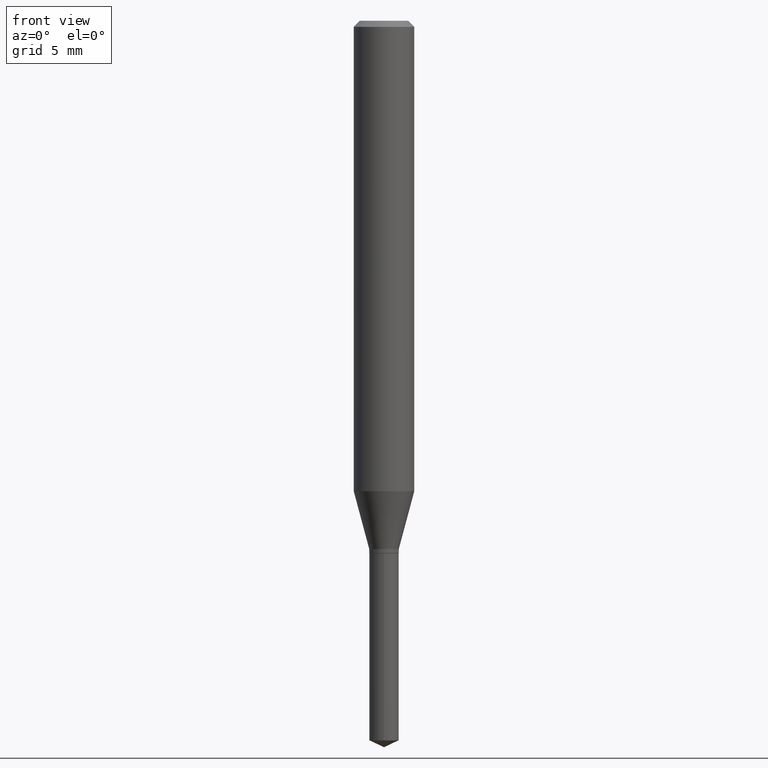
[diagram: clean part render]
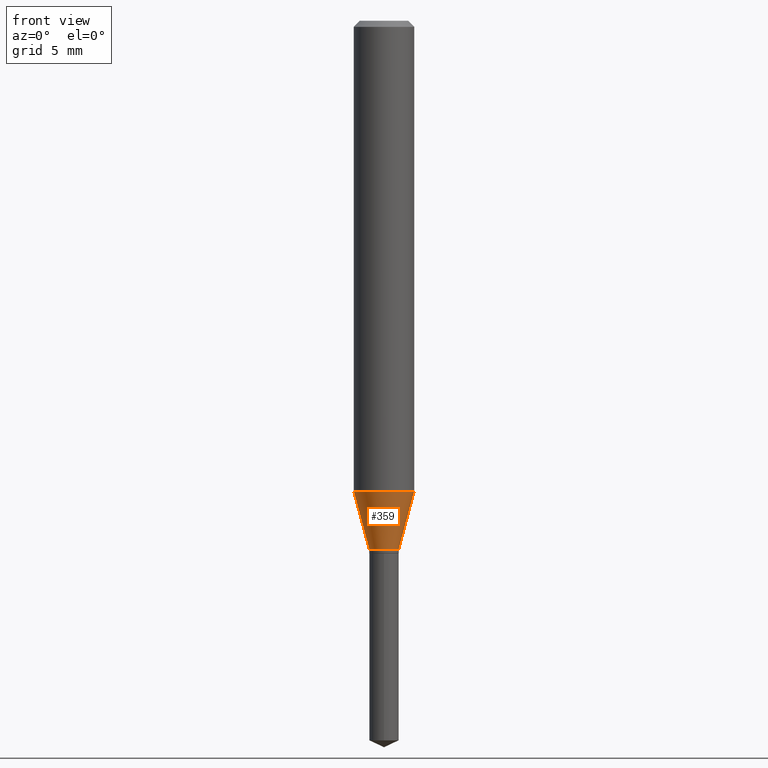
[diagram: same view with one face highlighted and labeled with its STEP entity id]
A machine part, front view. The second image highlights one B-rep face of the part: STEP entity #359.
In plain terms, the highlighted conical surface has half-angle 15 deg.
Its self-contained STEP definition (entity closure, byte-faithful):
#33 = DIRECTION ( 'NONE',  ( 1.000000000000000000, -6.982962677686264344E-15, 0.000000000000000000 ) ) ;
#42 = ORIENTED_EDGE ( 'NONE', *, *, #56, .T. ) ;
#56 = EDGE_CURVE ( 'NONE', #268, #235, #437, .T. ) ;
#75 = VECTOR ( 'NONE', #243, 39.37007874015748854 ) ;
#79 = LINE ( 'NONE', #459, #311 ) ;
#84 = ORIENTED_EDGE ( 'NONE', *, *, #297, .F. ) ;
#87 = DIRECTION ( 'NONE',  ( -2.445468806185136597E-29, 3.491481338843145583E-15, 1.000000000000000000 ) ) ;
#117 = DIRECTION ( 'NONE',  ( -2.445468806185136597E-29, 3.491481338843145583E-15, 1.000000000000000000 ) ) ;
#120 = FACE_OUTER_BOUND ( 'NONE', #299, .T. ) ;
#158 = CARTESIAN_POINT ( 'NONE',  ( 2.667517373786747418E-29, -3.808507844410103647E-15, -1.090799999999999992 ) ) ;
#225 = DIRECTION ( 'NONE',  ( 1.000000000000000000, -6.982962677686269866E-15, 0.000000000000000000 ) ) ;
#235 = VERTEX_POINT ( 'NONE', #255 ) ;
#240 = ORIENTED_EDGE ( 'NONE', *, *, #350, .F. ) ;
#243 = DIRECTION ( 'NONE',  ( 0.2588190451025212391, 1.565188264969622362E-15, 0.9659258262890679791 ) ) ;
#251 = CIRCLE ( 'NONE', #442, 0.06250000000000012490 ) ;
#255 = CARTESIAN_POINT ( 'NONE',  ( 0.06250000000000012490, -3.827970667757776114E-15, -0.9713743741577957058 ) ) ;
#268 = VERTEX_POINT ( 'NONE', #292 ) ;
#269 = DIRECTION ( 'NONE',  ( 1.000000000000000000, -6.982962677686269866E-15, 0.000000000000000000 ) ) ;
#292 = CARTESIAN_POINT ( 'NONE',  ( 0.03049999999999999586, -4.021488206079534971E-15, -1.090799999999999992 ) ) ;
#297 = EDGE_CURVE ( 'NONE', #305, #235, #251, .T. ) ;
#299 = EDGE_LOOP ( 'NONE', ( #240, #302, #42, #84 ) ) ;
#302 = ORIENTED_EDGE ( 'NONE', *, *, #393, .T. ) ;
#305 = VERTEX_POINT ( 'NONE', #370 ) ;
#311 = VECTOR ( 'NONE', #339, 39.37007874015748854 ) ;
#334 = CARTESIAN_POINT ( 'NONE',  ( 2.667517373786747418E-29, -3.808507844410103647E-15, -1.090799999999999992 ) ) ;
#338 = VERTEX_POINT ( 'NONE', #412 ) ;
#339 = DIRECTION ( 'NONE',  ( -0.2588190451025212391, 5.211531920934549464E-15, 0.9659258262890679791 ) ) ;
#350 = EDGE_CURVE ( 'NONE', #338, #305, #79, .T. ) ;
#357 = AXIS2_PLACEMENT_3D ( 'NONE', #334, #87, #225 ) ;
#358 = CARTESIAN_POINT ( 'NONE',  ( 2.375465731130499033E-29, -3.391535500402383261E-15, -0.9713743741577957058 ) ) ;
#359 = ADVANCED_FACE ( 'NONE', ( #120 ), #450, .T. ) ;
#370 = CARTESIAN_POINT ( 'NONE',  ( -0.06250000000000012490, -2.947446290552319856E-15, -0.9713743741577957058 ) ) ;
#378 = CIRCLE ( 'NONE', #357, 0.03049999999999999586 ) ;
#393 = EDGE_CURVE ( 'NONE', #338, #268, #378, .T. ) ;
#412 = CARTESIAN_POINT ( 'NONE',  ( -0.03049999999999999586, -3.606980253827240768E-15, -1.090799999999999992 ) ) ;
#437 = LINE ( 'NONE', #469, #75 ) ;
#442 = AXIS2_PLACEMENT_3D ( 'NONE', #358, #482, #33 ) ;
#450 = CONICAL_SURFACE ( 'NONE', #467, 0.03049999999999999586, 0.2617993877991499629 ) ;
#459 = CARTESIAN_POINT ( 'NONE',  ( -0.03049999999999999586, -3.591792310003273292E-15, -1.090799999999999992 ) ) ;
#467 = AXIS2_PLACEMENT_3D ( 'NONE', #158, #117, #269 ) ;
#469 = CARTESIAN_POINT ( 'NONE',  ( 0.03049999999999999586, -4.021488206079534971E-15, -1.090799999999999992 ) ) ;
#482 = DIRECTION ( 'NONE',  ( -2.445468806185136597E-29, 3.491481338843145583E-15, 1.000000000000000000 ) ) ;